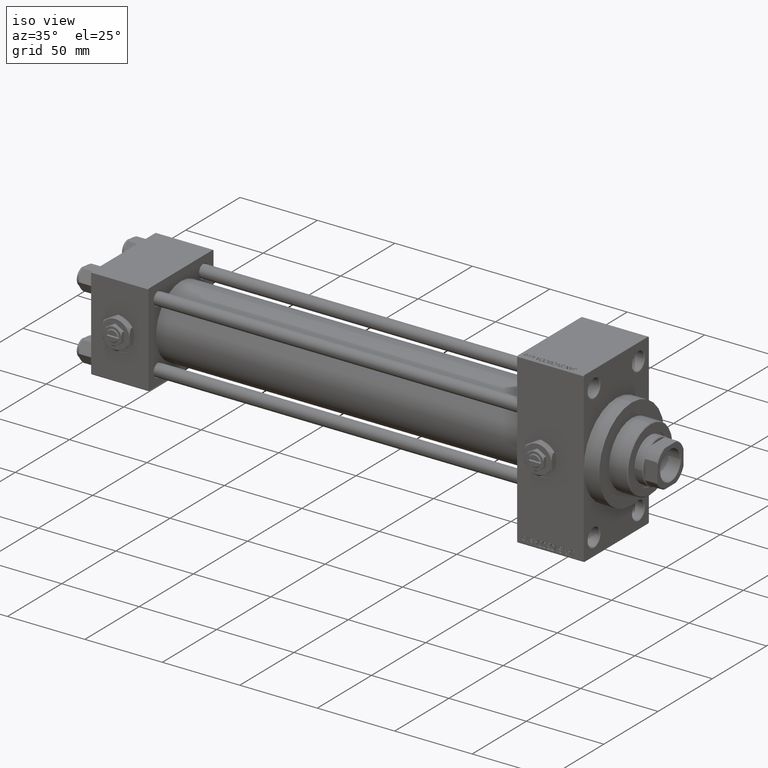
[diagram: clean part render]
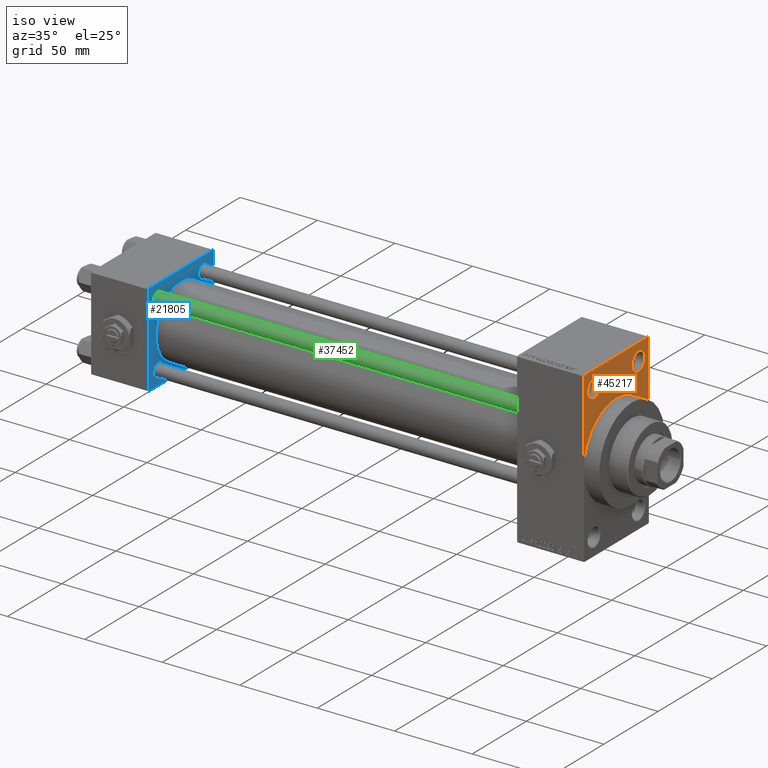
[diagram: same view with three faces highlighted in distinct colors, each labeled with its STEP entity id]
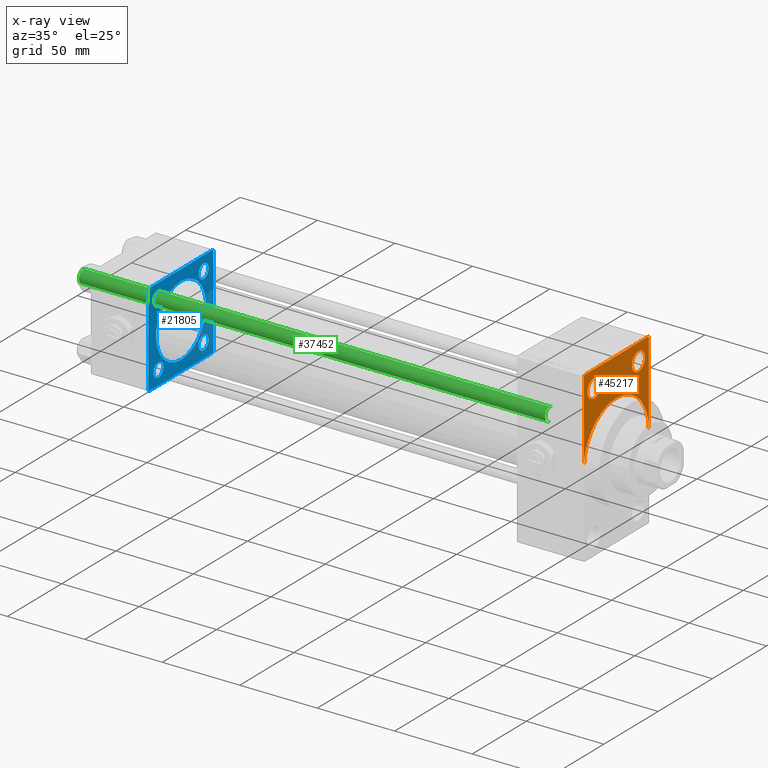
[diagram: x-ray of the same camera — body ghosted, the three highlighted faces saturated]
A machine part, iso view with three faces highlighted in distinct colors.
The next image is the same camera in x-ray (body ghosted, the three faces saturated) — at least one of them is partly hidden behind the body in this view.
Their STEP definitions:

[orange] entity #45217 — the highlighted planar face has unit normal (-1, 0, 0).
#89 = EDGE_CURVE ( 'NONE', #24641, #6910, #11106, .T. ) ;
#349 = CARTESIAN_POINT ( 'NONE',  ( 317.9999999999999432, -20.50000000000000000, 49.49999999999997158 ) ) ;
#2749 = ORIENTED_EDGE ( 'NONE', *, *, #18881, .T. ) ;
#3387 = CARTESIAN_POINT ( 'NONE',  ( 317.9999999999999432, 29.49999999999999645, 54.49999999999999289 ) ) ;
#3989 = CARTESIAN_POINT ( 'NONE',  ( 317.9999999999999432, 0.000000000000000000, 0.000000000000000000 ) ) ;
#4006 = DIRECTION ( 'NONE',  ( -1.000000000000000000, 0.000000000000000000, -0.000000000000000000 ) ) ;
#4676 = CIRCLE ( 'NONE', #34103, 5.999999999999977796 ) ;
#6679 = VECTOR ( 'NONE', #33823, 1000.000000000000114 ) ;
#6910 = VERTEX_POINT ( 'NONE', #36382 ) ;
#7093 = DIRECTION ( 'NONE',  ( 0.000000000000000000, 0.000000000000000000, -1.000000000000000000 ) ) ;
#7349 = CARTESIAN_POINT ( 'NONE',  ( 317.9999999999999432, -30.00000000000000000, 54.50000000000000000 ) ) ;
#7368 = DIRECTION ( 'NONE',  ( 0.000000000000000000, -0.7071067811865279218, 0.7071067811865672237 ) ) ;
#7920 = CARTESIAN_POINT ( 'NONE',  ( 317.9999999999999432, 0.000000000000000000, 0.000000000000000000 ) ) ;
#8643 = CARTESIAN_POINT ( 'NONE',  ( 317.9999999999999432, 29.99999999999999645, 54.49999999999999289 ) ) ;
#8656 = VECTOR ( 'NONE', #7368, 1000.000000000000000 ) ;
#10292 = AXIS2_PLACEMENT_3D ( 'NONE', #38145, #4006, #26420 ) ;
#11101 = DIRECTION ( 'NONE',  ( 0.000000000000000000, -1.000000000000000000, 1.156482317317871478E-16 ) ) ;
#11106 = LINE ( 'NONE', #3387, #8656 ) ;
#11247 = PLANE ( 'NONE',  #10292 ) ;
#11257 = CARTESIAN_POINT ( 'NONE',  ( 317.9999999999999432, 20.50000000000000000, 43.50000000000000000 ) ) ;
#11418 = CARTESIAN_POINT ( 'NONE',  ( 317.9999999999999432, 0.000000000000000000, 30.00000000000000000 ) ) ;
#13178 = CIRCLE ( 'NONE', #19575, 5.999999999999977796 ) ;
#14367 = CIRCLE ( 'NONE', #35034, 5.999999999999977796 ) ;
#14870 = ORIENTED_EDGE ( 'NONE', *, *, #39079, .F. ) ;
#15308 = VERTEX_POINT ( 'NONE', #45519 ) ;
#16069 = VERTEX_POINT ( 'NONE', #31407 ) ;
#17077 = ORIENTED_EDGE ( 'NONE', *, *, #17969, .T. ) ;
#17654 = DIRECTION ( 'NONE',  ( 0.000000000000000000, 0.000000000000000000, 1.000000000000000000 ) ) ;
#17969 = EDGE_CURVE ( 'NONE', #24661, #34248, #45349, .T. ) ;
#18281 = DIRECTION ( 'NONE',  ( 0.000000000000000000, 0.000000000000000000, 1.000000000000000000 ) ) ;
#18881 = EDGE_CURVE ( 'NONE', #36620, #16069, #14367, .T. ) ;
#18923 = EDGE_CURVE ( 'NONE', #24014, #24739, #30250, .T. ) ;
#19575 = AXIS2_PLACEMENT_3D ( 'NONE', #11257, #26431, #41166 ) ;
#20025 = ORIENTED_EDGE ( 'NONE', *, *, #30650, .T. ) ;
#20685 = ORIENTED_EDGE ( 'NONE', *, *, #18923, .F. ) ;
#22192 = DIRECTION ( 'NONE',  ( 0.000000000000000000, 0.000000000000000000, 1.000000000000000000 ) ) ;
#22455 = FACE_OUTER_BOUND ( 'NONE', #26648, .T. ) ;
#22685 = DIRECTION ( 'NONE',  ( 1.000000000000000000, 0.000000000000000000, 0.000000000000000000 ) ) ;
#24014 = VERTEX_POINT ( 'NONE', #42973 ) ;
#24357 = ORIENTED_EDGE ( 'NONE', *, *, #35359, .T. ) ;
#24382 = CARTESIAN_POINT ( 'NONE',  ( 317.9999999999999432, -20.50000000000000000, 37.50000000000002132 ) ) ;
#24641 = VERTEX_POINT ( 'NONE', #36099 ) ;
#24661 = VERTEX_POINT ( 'NONE', #24382 ) ;
#24739 = VERTEX_POINT ( 'NONE', #11418 ) ;
#25107 = VECTOR ( 'NONE', #47023, 1000.000000000000000 ) ;
#25318 = ORIENTED_EDGE ( 'NONE', *, *, #89, .T. ) ;
#25844 = CARTESIAN_POINT ( 'NONE',  ( 317.9999999999999432, -20.50000000000000000, 43.50000000000000000 ) ) ;
#26420 = DIRECTION ( 'NONE',  ( -0.000000000000000000, 0.000000000000000000, 1.000000000000000000 ) ) ;
#26431 = DIRECTION ( 'NONE',  ( -1.000000000000000000, 0.000000000000000000, -0.000000000000000000 ) ) ;
#26648 = EDGE_LOOP ( 'NONE', ( #42761, #20025, #34350, #44978, #20685, #14870, #25318 ) ) ;
#27077 = AXIS2_PLACEMENT_3D ( 'NONE', #7920, #46550, #34831 ) ;
#27300 = CARTESIAN_POINT ( 'NONE',  ( 317.9999999999999432, -30.00000000000000000, 53.99999999999994316 ) ) ;
#28538 = AXIS2_PLACEMENT_3D ( 'NONE', #3989, #22685, #45619 ) ;
#29231 = DIRECTION ( 'NONE',  ( -1.000000000000000000, 0.000000000000000000, -0.000000000000000000 ) ) ;
#29350 = VECTOR ( 'NONE', #7093, 1000.000000000000000 ) ;
#30015 = CARTESIAN_POINT ( 'NONE',  ( 317.9999999999999432, 29.99999999999999645, 54.49999999999999289 ) ) ;
#30135 = VECTOR ( 'NONE', #11101, 1000.000000000000000 ) ;
#30250 = CIRCLE ( 'NONE', #27077, 30.00000000000000000 ) ;
#30284 = VERTEX_POINT ( 'NONE', #40449 ) ;
#30650 = EDGE_CURVE ( 'NONE', #30284, #47795, #33580, .T. ) ;
#31326 = CARTESIAN_POINT ( 'NONE',  ( 317.9999999999999432, 20.50000000000000000, 43.50000000000000000 ) ) ;
#31407 = CARTESIAN_POINT ( 'NONE',  ( 317.9999999999999432, 20.50000000000000000, 37.50000000000002132 ) ) ;
#31790 = LINE ( 'NONE', #8643, #25107 ) ;
#32440 = ORIENTED_EDGE ( 'NONE', *, *, #44347, .T. ) ;
#33084 = CARTESIAN_POINT ( 'NONE',  ( 317.9999999999999432, -30.00000000000000000, 53.99999999999994316 ) ) ;
#33580 = LINE ( 'NONE', #33084, #6679 ) ;
#33720 = CARTESIAN_POINT ( 'NONE',  ( 317.9999999999999432, -20.50000000000000000, 43.50000000000000000 ) ) ;
#33823 = DIRECTION ( 'NONE',  ( -0.000000000000000000, -0.7071067811865451302, -0.7071067811865500152 ) ) ;
#34103 = AXIS2_PLACEMENT_3D ( 'NONE', #33720, #29231, #18281 ) ;
#34248 = VERTEX_POINT ( 'NONE', #349 ) ;
#34350 = ORIENTED_EDGE ( 'NONE', *, *, #48195, .T. ) ;
#34413 = FACE_BOUND ( 'NONE', #39826, .T. ) ;
#34831 = DIRECTION ( 'NONE',  ( 0.000000000000000000, 0.000000000000000000, -1.000000000000000000 ) ) ;
#35034 = AXIS2_PLACEMENT_3D ( 'NONE', #31326, #38075, #22192 ) ;
#35359 = EDGE_CURVE ( 'NONE', #16069, #36620, #13178, .T. ) ;
#36099 = CARTESIAN_POINT ( 'NONE',  ( 317.9999999999999432, 29.99999999999999645, 53.99999999999996447 ) ) ;
#36382 = CARTESIAN_POINT ( 'NONE',  ( 317.9999999999999432, 29.49999999999999645, 54.49999999999999289 ) ) ;
#36620 = VERTEX_POINT ( 'NONE', #46584 ) ;
#37377 = AXIS2_PLACEMENT_3D ( 'NONE', #25844, #40579, #17654 ) ;
#37911 = FACE_BOUND ( 'NONE', #49193, .T. ) ;
#38075 = DIRECTION ( 'NONE',  ( -1.000000000000000000, 0.000000000000000000, -0.000000000000000000 ) ) ;
#38145 = CARTESIAN_POINT ( 'NONE',  ( 317.9999999999999432, 0.000000000000000000, 0.000000000000000000 ) ) ;
#39079 = EDGE_CURVE ( 'NONE', #24641, #24014, #31790, .T. ) ;
#39826 = EDGE_LOOP ( 'NONE', ( #17077, #32440 ) ) ;
#40449 = CARTESIAN_POINT ( 'NONE',  ( 317.9999999999999432, -29.49999999999994671, 54.50000000000000000 ) ) ;
#40579 = DIRECTION ( 'NONE',  ( -1.000000000000000000, 0.000000000000000000, -0.000000000000000000 ) ) ;
#41166 = DIRECTION ( 'NONE',  ( 0.000000000000000000, 0.000000000000000000, 1.000000000000000000 ) ) ;
#41237 = LINE ( 'NONE', #7349, #29350 ) ;
#41270 = CIRCLE ( 'NONE', #28538, 30.00000000000000000 ) ;
#42761 = ORIENTED_EDGE ( 'NONE', *, *, #43294, .T. ) ;
#42973 = CARTESIAN_POINT ( 'NONE',  ( 317.9999999999999432, 30.00000000000000000, 0.000000000000000000 ) ) ;
#43294 = EDGE_CURVE ( 'NONE', #6910, #30284, #44997, .T. ) ;
#43845 = EDGE_CURVE ( 'NONE', #24739, #15308, #41270, .T. ) ;
#44347 = EDGE_CURVE ( 'NONE', #34248, #24661, #4676, .T. ) ;
#44978 = ORIENTED_EDGE ( 'NONE', *, *, #43845, .F. ) ;
#44997 = LINE ( 'NONE', #30015, #30135 ) ;
#45217 = ADVANCED_FACE ( 'NONE', ( #34413, #37911, #22455 ), #11247, .F. ) ;
#45349 = CIRCLE ( 'NONE', #37377, 5.999999999999977796 ) ;
#45519 = CARTESIAN_POINT ( 'NONE',  ( 317.9999999999999432, -30.00000000000000000, 0.000000000000000000 ) ) ;
#45619 = DIRECTION ( 'NONE',  ( 0.000000000000000000, 0.000000000000000000, -1.000000000000000000 ) ) ;
#46550 = DIRECTION ( 'NONE',  ( 1.000000000000000000, 0.000000000000000000, 0.000000000000000000 ) ) ;
#46584 = CARTESIAN_POINT ( 'NONE',  ( 317.9999999999999432, 20.50000000000000000, 49.49999999999997158 ) ) ;
#47023 = DIRECTION ( 'NONE',  ( 0.000000000000000000, 0.000000000000000000, -1.000000000000000000 ) ) ;
#47795 = VERTEX_POINT ( 'NONE', #27300 ) ;
#48195 = EDGE_CURVE ( 'NONE', #47795, #15308, #41237, .T. ) ;
#49193 = EDGE_LOOP ( 'NONE', ( #24357, #2749 ) ) ;

[blue] entity #21805 — the highlighted planar face has unit normal (-1, 0, 0).
#166 = DIRECTION ( 'NONE',  ( 0.000000000000000000, 0.000000000000000000, 1.000000000000000000 ) ) ;
#234 = DIRECTION ( 'NONE',  ( 0.000000000000000000, -1.000000000000000000, -1.156482317317871725E-16 ) ) ;
#520 = CIRCLE ( 'NONE', #35529, 4.499999999999948486 ) ;
#551 = DIRECTION ( 'NONE',  ( 0.000000000000000000, -1.000000000000000000, -1.156482317317871725E-16 ) ) ;
#599 = FACE_OUTER_BOUND ( 'NONE', #14450, .T. ) ;
#1239 = VERTEX_POINT ( 'NONE', #16817 ) ;
#1340 = VERTEX_POINT ( 'NONE', #6827 ) ;
#1391 = CARTESIAN_POINT ( 'NONE',  ( 37.00000000000000000, 20.84999999999999787, -16.35000000000005116 ) ) ;
#1546 = VECTOR ( 'NONE', #21973, 1000.000000000000114 ) ;
#1916 = AXIS2_PLACEMENT_3D ( 'NONE', #4660, #11414, #4173 ) ;
#1932 = FACE_BOUND ( 'NONE', #33756, .T. ) ;
#2165 = EDGE_CURVE ( 'NONE', #15902, #1340, #37004, .T. ) ;
#3333 = AXIS2_PLACEMENT_3D ( 'NONE', #17219, #43639, #48130 ) ;
#3773 = ORIENTED_EDGE ( 'NONE', *, *, #45077, .T. ) ;
#4173 = DIRECTION ( 'NONE',  ( 0.000000000000000000, 0.000000000000000000, 1.000000000000000000 ) ) ;
#4274 = VECTOR ( 'NONE', #13924, 1000.000000000000000 ) ;
#4335 = FACE_BOUND ( 'NONE', #48348, .T. ) ;
#4660 = CARTESIAN_POINT ( 'NONE',  ( 37.00000000000000000, -20.84999999999999076, -20.85000000000000497 ) ) ;
#4918 = CIRCLE ( 'NONE', #24010, 4.499999999999948486 ) ;
#5121 = CIRCLE ( 'NONE', #30566, 4.499999999999948486 ) ;
#5146 = CARTESIAN_POINT ( 'NONE',  ( 37.00000000000000000, 20.84999999999999787, -20.85000000000000142 ) ) ;
#5385 = DIRECTION ( 'NONE',  ( 0.000000000000000000, 0.000000000000000000, 1.000000000000000000 ) ) ;
#5666 = FACE_BOUND ( 'NONE', #12705, .T. ) ;
#6827 = CARTESIAN_POINT ( 'NONE',  ( 37.00000000000000000, 29.99999999999999289, -29.50000000000000000 ) ) ;
#6927 = LINE ( 'NONE', #29837, #4274 ) ;
#7326 = DIRECTION ( 'NONE',  ( -1.000000000000000000, 0.000000000000000000, -0.000000000000000000 ) ) ;
#7662 = CIRCLE ( 'NONE', #32328, 4.499999999999948486 ) ;
#7792 = DIRECTION ( 'NONE',  ( 0.000000000000000000, 0.000000000000000000, 1.000000000000000000 ) ) ;
#7813 = FACE_BOUND ( 'NONE', #38479, .T. ) ;
#9831 = ORIENTED_EDGE ( 'NONE', *, *, #25647, .F. ) ;
#10943 = EDGE_CURVE ( 'NONE', #32997, #19188, #4918, .T. ) ;
#10966 = DIRECTION ( 'NONE',  ( 0.000000000000000000, -0.7071067811865474617, 0.7071067811865474617 ) ) ;
#11384 = CIRCLE ( 'NONE', #22391, 23.00000000000000000 ) ;
#11414 = DIRECTION ( 'NONE',  ( -1.000000000000000000, 0.000000000000000000, -0.000000000000000000 ) ) ;
#12085 = ORIENTED_EDGE ( 'NONE', *, *, #13033, .F. ) ;
#12224 = DIRECTION ( 'NONE',  ( 0.000000000000000000, 0.000000000000000000, -1.000000000000000000 ) ) ;
#12471 = CARTESIAN_POINT ( 'NONE',  ( 37.00000000000000000, -29.50000000000000000, -30.00000000000000711 ) ) ;
#12705 = EDGE_LOOP ( 'NONE', ( #17725, #38443 ) ) ;
#13033 = EDGE_CURVE ( 'NONE', #19310, #1239, #48027, .T. ) ;
#13924 = DIRECTION ( 'NONE',  ( 0.000000000000000000, 0.000000000000000000, -1.000000000000000000 ) ) ;
#14053 = EDGE_CURVE ( 'NONE', #22497, #1340, #6927, .T. ) ;
#14450 = EDGE_LOOP ( 'NONE', ( #16257, #27027, #21614, #38013, #41744, #3773, #40180, #48030 ) ) ;
#14612 = VERTEX_POINT ( 'NONE', #33733 ) ;
#15902 = VERTEX_POINT ( 'NONE', #49145 ) ;
#16168 = VERTEX_POINT ( 'NONE', #36379 ) ;
#16187 = DIRECTION ( 'NONE',  ( 0.000000000000000000, 0.000000000000000000, 1.000000000000000000 ) ) ;
#16257 = ORIENTED_EDGE ( 'NONE', *, *, #23584, .F. ) ;
#16817 = CARTESIAN_POINT ( 'NONE',  ( 37.00000000000000711, 2.146024240737016609E-16, -23.00000000000000000 ) ) ;
#16878 = CARTESIAN_POINT ( 'NONE',  ( 37.00000000000000000, -30.00000000000000000, 29.49999999999999289 ) ) ;
#17123 = VECTOR ( 'NONE', #42521, 1000.000000000000114 ) ;
#17124 = FACE_BOUND ( 'NONE', #26798, .T. ) ;
#17219 = CARTESIAN_POINT ( 'NONE',  ( 37.00000000000000000, 20.84999999999999787, -20.85000000000000142 ) ) ;
#17403 = CARTESIAN_POINT ( 'NONE',  ( 37.00000000000000711, -2.602085213965210642E-15, 0.000000000000000000 ) ) ;
#17485 = LINE ( 'NONE', #25924, #1546 ) ;
#17663 = CIRCLE ( 'NONE', #3333, 4.499999999999948486 ) ;
#17725 = ORIENTED_EDGE ( 'NONE', *, *, #30731, .T. ) ;
#17810 = DIRECTION ( 'NONE',  ( -0.000000000000000000, 0.7071067811865574537, 0.7071067811865376918 ) ) ;
#18771 = VECTOR ( 'NONE', #10966, 1000.000000000000114 ) ;
#18841 = CIRCLE ( 'NONE', #47511, 4.499999999999948486 ) ;
#19188 = VERTEX_POINT ( 'NONE', #21595 ) ;
#19205 = AXIS2_PLACEMENT_3D ( 'NONE', #23002, #7326, #22527 ) ;
#19310 = VERTEX_POINT ( 'NONE', #23551 ) ;
#19491 = LINE ( 'NONE', #20231, #39172 ) ;
#19714 = VERTEX_POINT ( 'NONE', #12471 ) ;
#19941 = LINE ( 'NONE', #32114, #38100 ) ;
#20231 = CARTESIAN_POINT ( 'NONE',  ( 37.00000000000000000, 29.99999999999999289, -30.00000000000000000 ) ) ;
#20421 = DIRECTION ( 'NONE',  ( 1.000000000000000000, -0.000000000000000000, 0.000000000000000000 ) ) ;
#21222 = CIRCLE ( 'NONE', #36334, 4.499999999999948486 ) ;
#21511 = CARTESIAN_POINT ( 'NONE',  ( 37.00000000000000000, -20.84999999999999076, 25.34999999999995168 ) ) ;
#21595 = CARTESIAN_POINT ( 'NONE',  ( 37.00000000000000000, 20.84999999999999787, 25.34999999999994813 ) ) ;
#21614 = ORIENTED_EDGE ( 'NONE', *, *, #14053, .F. ) ;
#21738 = AXIS2_PLACEMENT_3D ( 'NONE', #24611, #20421, #16187 ) ;
#21805 = ADVANCED_FACE ( 'NONE', ( #5666, #1932, #17124, #4335, #7813, #599 ), #42213, .F. ) ;
#21973 = DIRECTION ( 'NONE',  ( -0.000000000000000000, -0.7071067811865474617, -0.7071067811865474617 ) ) ;
#22391 = AXIS2_PLACEMENT_3D ( 'NONE', #17403, #32593, #24875 ) ;
#22497 = VERTEX_POINT ( 'NONE', #35099 ) ;
#22520 = ORIENTED_EDGE ( 'NONE', *, *, #39806, .T. ) ;
#22527 = DIRECTION ( 'NONE',  ( -0.000000000000000000, 0.000000000000000000, 1.000000000000000000 ) ) ;
#22826 = CARTESIAN_POINT ( 'NONE',  ( 37.00000000000000000, -29.50000000000001066, -30.00000000000000711 ) ) ;
#23002 = CARTESIAN_POINT ( 'NONE',  ( 37.00000000000000000, 0.000000000000000000, 0.000000000000000000 ) ) ;
#23551 = CARTESIAN_POINT ( 'NONE',  ( 37.00000000000000711, -2.602085213965210642E-15, 23.00000000000000000 ) ) ;
#23584 = EDGE_CURVE ( 'NONE', #15902, #19714, #19491, .T. ) ;
#24010 = AXIS2_PLACEMENT_3D ( 'NONE', #46780, #31315, #35069 ) ;
#24108 = VERTEX_POINT ( 'NONE', #21511 ) ;
#24217 = DIRECTION ( 'NONE',  ( -1.000000000000000000, 0.000000000000000000, -0.000000000000000000 ) ) ;
#24611 = CARTESIAN_POINT ( 'NONE',  ( 37.00000000000000711, -2.602085213965210642E-15, 0.000000000000000000 ) ) ;
#24754 = CARTESIAN_POINT ( 'NONE',  ( 37.00000000000000000, 20.84999999999999787, 16.35000000000005116 ) ) ;
#24875 = DIRECTION ( 'NONE',  ( 0.000000000000000000, 0.000000000000000000, 1.000000000000000000 ) ) ;
#25647 = EDGE_CURVE ( 'NONE', #1239, #19310, #11384, .T. ) ;
#25924 = CARTESIAN_POINT ( 'NONE',  ( 37.00000000000000000, -30.00000000000000000, 29.49999999999999289 ) ) ;
#26041 = EDGE_CURVE ( 'NONE', #37631, #34027, #17663, .T. ) ;
#26735 = ORIENTED_EDGE ( 'NONE', *, *, #31526, .T. ) ;
#26798 = EDGE_LOOP ( 'NONE', ( #38493, #38682 ) ) ;
#27027 = ORIENTED_EDGE ( 'NONE', *, *, #2165, .T. ) ;
#28064 = VERTEX_POINT ( 'NONE', #16878 ) ;
#28499 = VERTEX_POINT ( 'NONE', #29426 ) ;
#28905 = VERTEX_POINT ( 'NONE', #42822 ) ;
#29426 = CARTESIAN_POINT ( 'NONE',  ( 37.00000000000000000, -30.00000000000000000, -29.50000000000001776 ) ) ;
#29444 = VERTEX_POINT ( 'NONE', #42409 ) ;
#29668 = EDGE_CURVE ( 'NONE', #14612, #28905, #38599, .T. ) ;
#29837 = CARTESIAN_POINT ( 'NONE',  ( 37.00000000000000000, 29.99999999999999289, 30.00000000000000000 ) ) ;
#29870 = ORIENTED_EDGE ( 'NONE', *, *, #26041, .T. ) ;
#29879 = CARTESIAN_POINT ( 'NONE',  ( 37.00000000000000000, 29.49999999999999289, 30.00000000000000000 ) ) ;
#30537 = LINE ( 'NONE', #22826, #17123 ) ;
#30566 = AXIS2_PLACEMENT_3D ( 'NONE', #5146, #42541, #5385 ) ;
#30670 = CARTESIAN_POINT ( 'NONE',  ( 37.00000000000000000, -20.84999999999999076, 16.35000000000005471 ) ) ;
#30731 = EDGE_CURVE ( 'NONE', #29444, #16168, #48838, .T. ) ;
#31199 = CARTESIAN_POINT ( 'NONE',  ( 37.00000000000000000, -20.84999999999999076, 20.85000000000000497 ) ) ;
#31315 = DIRECTION ( 'NONE',  ( -1.000000000000000000, 0.000000000000000000, -0.000000000000000000 ) ) ;
#31526 = EDGE_CURVE ( 'NONE', #34027, #37631, #5121, .T. ) ;
#31678 = DIRECTION ( 'NONE',  ( 0.000000000000000000, 0.000000000000000000, 1.000000000000000000 ) ) ;
#32114 = CARTESIAN_POINT ( 'NONE',  ( 37.00000000000000000, -30.00000000000000000, 29.99999999999999289 ) ) ;
#32328 = AXIS2_PLACEMENT_3D ( 'NONE', #42188, #41943, #7792 ) ;
#32593 = DIRECTION ( 'NONE',  ( 1.000000000000000000, -0.000000000000000000, 0.000000000000000000 ) ) ;
#32997 = VERTEX_POINT ( 'NONE', #24754 ) ;
#33053 = DIRECTION ( 'NONE',  ( -1.000000000000000000, 0.000000000000000000, -0.000000000000000000 ) ) ;
#33733 = CARTESIAN_POINT ( 'NONE',  ( 37.00000000000000000, 29.49999999999999289, 30.00000000000000000 ) ) ;
#33756 = EDGE_LOOP ( 'NONE', ( #29870, #26735 ) ) ;
#33874 = EDGE_CURVE ( 'NONE', #28499, #19714, #30537, .T. ) ;
#34027 = VERTEX_POINT ( 'NONE', #1391 ) ;
#34365 = CARTESIAN_POINT ( 'NONE',  ( 37.00000000000000000, 29.99999999999999289, 30.00000000000000000 ) ) ;
#35069 = DIRECTION ( 'NONE',  ( 0.000000000000000000, 0.000000000000000000, 1.000000000000000000 ) ) ;
#35099 = CARTESIAN_POINT ( 'NONE',  ( 37.00000000000000000, 29.99999999999999289, 29.50000000000000000 ) ) ;
#35529 = AXIS2_PLACEMENT_3D ( 'NONE', #31199, #24217, #31678 ) ;
#36334 = AXIS2_PLACEMENT_3D ( 'NONE', #42278, #37798, #166 ) ;
#36379 = CARTESIAN_POINT ( 'NONE',  ( 37.00000000000000000, -20.84999999999999076, -16.35000000000005471 ) ) ;
#37004 = LINE ( 'NONE', #40242, #43753 ) ;
#37108 = EDGE_CURVE ( 'NONE', #16168, #29444, #21222, .T. ) ;
#37631 = VERTEX_POINT ( 'NONE', #45092 ) ;
#37798 = DIRECTION ( 'NONE',  ( -1.000000000000000000, 0.000000000000000000, -0.000000000000000000 ) ) ;
#38013 = ORIENTED_EDGE ( 'NONE', *, *, #38900, .T. ) ;
#38100 = VECTOR ( 'NONE', #12224, 1000.000000000000000 ) ;
#38443 = ORIENTED_EDGE ( 'NONE', *, *, #37108, .T. ) ;
#38479 = EDGE_LOOP ( 'NONE', ( #12085, #9831 ) ) ;
#38493 = ORIENTED_EDGE ( 'NONE', *, *, #41444, .T. ) ;
#38599 = LINE ( 'NONE', #34365, #44026 ) ;
#38682 = ORIENTED_EDGE ( 'NONE', *, *, #39859, .T. ) ;
#38900 = EDGE_CURVE ( 'NONE', #22497, #14612, #46283, .T. ) ;
#39172 = VECTOR ( 'NONE', #551, 1000.000000000000000 ) ;
#39806 = EDGE_CURVE ( 'NONE', #19188, #32997, #7662, .T. ) ;
#39859 = EDGE_CURVE ( 'NONE', #24108, #46755, #520, .T. ) ;
#40180 = ORIENTED_EDGE ( 'NONE', *, *, #43970, .T. ) ;
#40242 = CARTESIAN_POINT ( 'NONE',  ( 37.00000000000000000, 29.99999999999999289, -29.50000000000000000 ) ) ;
#41444 = EDGE_CURVE ( 'NONE', #46755, #24108, #18841, .T. ) ;
#41744 = ORIENTED_EDGE ( 'NONE', *, *, #29668, .T. ) ;
#41943 = DIRECTION ( 'NONE',  ( -1.000000000000000000, 0.000000000000000000, -0.000000000000000000 ) ) ;
#42188 = CARTESIAN_POINT ( 'NONE',  ( 37.00000000000000000, 20.84999999999999787, 20.85000000000000142 ) ) ;
#42213 = PLANE ( 'NONE',  #19205 ) ;
#42278 = CARTESIAN_POINT ( 'NONE',  ( 37.00000000000000000, -20.84999999999999076, -20.85000000000000497 ) ) ;
#42409 = CARTESIAN_POINT ( 'NONE',  ( 37.00000000000000000, -20.84999999999999076, -25.34999999999995168 ) ) ;
#42521 = DIRECTION ( 'NONE',  ( 0.000000000000000000, 0.7071067811865474617, -0.7071067811865474617 ) ) ;
#42541 = DIRECTION ( 'NONE',  ( -1.000000000000000000, 0.000000000000000000, -0.000000000000000000 ) ) ;
#42822 = CARTESIAN_POINT ( 'NONE',  ( 37.00000000000000000, -29.49999999999998579, 29.99999999999999289 ) ) ;
#43639 = DIRECTION ( 'NONE',  ( -1.000000000000000000, 0.000000000000000000, -0.000000000000000000 ) ) ;
#43753 = VECTOR ( 'NONE', #17810, 999.9999999999998863 ) ;
#43769 = DIRECTION ( 'NONE',  ( 0.000000000000000000, 0.000000000000000000, 1.000000000000000000 ) ) ;
#43970 = EDGE_CURVE ( 'NONE', #28064, #28499, #19941, .T. ) ;
#44026 = VECTOR ( 'NONE', #234, 1000.000000000000000 ) ;
#44028 = CARTESIAN_POINT ( 'NONE',  ( 37.00000000000000000, -20.84999999999999076, 20.85000000000000497 ) ) ;
#45077 = EDGE_CURVE ( 'NONE', #28905, #28064, #17485, .T. ) ;
#45092 = CARTESIAN_POINT ( 'NONE',  ( 37.00000000000000000, 20.84999999999999787, -25.34999999999994813 ) ) ;
#45658 = ORIENTED_EDGE ( 'NONE', *, *, #10943, .T. ) ;
#46283 = LINE ( 'NONE', #29879, #18771 ) ;
#46755 = VERTEX_POINT ( 'NONE', #30670 ) ;
#46780 = CARTESIAN_POINT ( 'NONE',  ( 37.00000000000000000, 20.84999999999999787, 20.85000000000000142 ) ) ;
#47511 = AXIS2_PLACEMENT_3D ( 'NONE', #44028, #33053, #43769 ) ;
#48027 = CIRCLE ( 'NONE', #21738, 23.00000000000000000 ) ;
#48030 = ORIENTED_EDGE ( 'NONE', *, *, #33874, .T. ) ;
#48130 = DIRECTION ( 'NONE',  ( 0.000000000000000000, 0.000000000000000000, 1.000000000000000000 ) ) ;
#48348 = EDGE_LOOP ( 'NONE', ( #45658, #22520 ) ) ;
#48838 = CIRCLE ( 'NONE', #1916, 4.499999999999948486 ) ;
#49145 = CARTESIAN_POINT ( 'NONE',  ( 37.00000000000000000, 29.49999999999997868, -30.00000000000000000 ) ) ;

[green] entity #37452 — the highlighted cylindrical surface (edge-blend (fillet) strip) has radius 4 mm, axis along (1, 0, 0).
#3104 = CYLINDRICAL_SURFACE ( 'NONE', #33167, 4.000000000000000000 ) ;
#3906 = CARTESIAN_POINT ( 'NONE',  ( 0.000000000000000000, 0.000000000000000000, 0.5000000000000559552 ) ) ;
#4013 = ORIENTED_EDGE ( 'NONE', *, *, #23763, .T. ) ;
#4023 = ORIENTED_EDGE ( 'NONE', *, *, #43603, .F. ) ;
#4092 = CARTESIAN_POINT ( 'NONE',  ( 0.000000000000000000, 0.000000000000000000, 302.0000000000000000 ) ) ;
#5874 = CARTESIAN_POINT ( 'NONE',  ( -4.000000000000000000, 0.000000000000000000, 0.5000000000000559552 ) ) ;
#6209 = EDGE_CURVE ( 'NONE', #11363, #37677, #36729, .T. ) ;
#7277 = LINE ( 'NONE', #29938, #20008 ) ;
#7337 = FACE_OUTER_BOUND ( 'NONE', #37134, .T. ) ;
#9415 = EDGE_CURVE ( 'NONE', #37677, #47449, #7277, .T. ) ;
#11363 = VERTEX_POINT ( 'NONE', #31197 ) ;
#12082 = AXIS2_PLACEMENT_3D ( 'NONE', #44964, #23011, #14571 ) ;
#14571 = DIRECTION ( 'NONE',  ( 1.000000000000000000, 0.000000000000000000, 0.000000000000000000 ) ) ;
#17093 = DIRECTION ( 'NONE',  ( 1.000000000000000000, 0.000000000000000000, 0.000000000000000000 ) ) ;
#18247 = DIRECTION ( 'NONE',  ( -0.000000000000000000, -0.000000000000000000, -1.000000000000000000 ) ) ;
#18556 = DIRECTION ( 'NONE',  ( -1.000000000000000000, 0.000000000000000000, 0.000000000000000000 ) ) ;
#19112 = DIRECTION ( 'NONE',  ( -0.000000000000000000, -0.000000000000000000, 1.000000000000000000 ) ) ;
#20008 = VECTOR ( 'NONE', #18247, 1000.000000000000000 ) ;
#23011 = DIRECTION ( 'NONE',  ( 0.000000000000000000, 0.000000000000000000, -1.000000000000000000 ) ) ;
#23763 = EDGE_CURVE ( 'NONE', #47449, #36025, #25615, .T. ) ;
#25615 = CIRCLE ( 'NONE', #28012, 4.000000000000000000 ) ;
#26708 = LINE ( 'NONE', #45186, #26928 ) ;
#26928 = VECTOR ( 'NONE', #30939, 1000.000000000000000 ) ;
#28012 = AXIS2_PLACEMENT_3D ( 'NONE', #3906, #19112, #17093 ) ;
#29938 = CARTESIAN_POINT ( 'NONE',  ( 4.000000000000000000, 4.898587196589412829E-16, 302.0000000000000000 ) ) ;
#30939 = DIRECTION ( 'NONE',  ( -0.000000000000000000, -0.000000000000000000, -1.000000000000000000 ) ) ;
#31197 = CARTESIAN_POINT ( 'NONE',  ( -4.000000000000000000, 0.000000000000000000, 301.4999999999999432 ) ) ;
#31459 = ORIENTED_EDGE ( 'NONE', *, *, #9415, .T. ) ;
#32912 = ORIENTED_EDGE ( 'NONE', *, *, #6209, .T. ) ;
#33167 = AXIS2_PLACEMENT_3D ( 'NONE', #4092, #34492, #18556 ) ;
#34492 = DIRECTION ( 'NONE',  ( -0.000000000000000000, -0.000000000000000000, -1.000000000000000000 ) ) ;
#36025 = VERTEX_POINT ( 'NONE', #5874 ) ;
#36729 = CIRCLE ( 'NONE', #12082, 4.000000000000000000 ) ;
#37134 = EDGE_LOOP ( 'NONE', ( #32912, #31459, #4013, #4023 ) ) ;
#37452 = ADVANCED_FACE ( 'NONE', ( #7337 ), #3104, .T. ) ;
#37677 = VERTEX_POINT ( 'NONE', #44346 ) ;
#38549 = CARTESIAN_POINT ( 'NONE',  ( 4.000000000000000000, 4.898587196589412829E-16, 0.5000000000000559552 ) ) ;
#43603 = EDGE_CURVE ( 'NONE', #11363, #36025, #26708, .T. ) ;
#44346 = CARTESIAN_POINT ( 'NONE',  ( 4.000000000000000000, 4.898587196589412829E-16, 301.4999999999999432 ) ) ;
#44964 = CARTESIAN_POINT ( 'NONE',  ( 0.000000000000000000, 0.000000000000000000, 301.4999999999999432 ) ) ;
#45186 = CARTESIAN_POINT ( 'NONE',  ( -4.000000000000000000, 0.000000000000000000, 302.0000000000000000 ) ) ;
#47449 = VERTEX_POINT ( 'NONE', #38549 ) ;